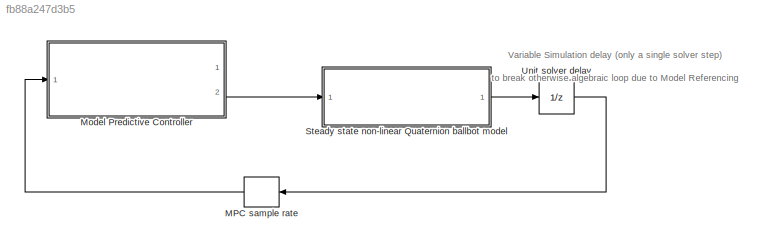
MODEL slx_fb88a247d3b5
KIND model
CONFIG AbsTol = auto
CONFIG EnableMultiTasking = off
CONFIG FixedStep = auto
CONFIG InitFcn = Parameters_General\nParameters_Simulation\nParameters_Controllers
CONFIG MaxStep = 1e-2
CONFIG MinStep = auto
CONFIG PreLoadFcn = modelDir = fileparts(get_param(bdroot, 'FileName'));\naddpath(fullfile(modelDir,'../Parameters'));\naddpath(fullfile(modelDir,'subsystems'));\n\nParameters_General\nParameters_Simulation\nParameters_Controllers
CONFIG RelTol = 1e-5
CONFIG SampleTimeConstraint = Unconstrained
CONFIG Solver = VariableStepAuto
CONFIG SolverName = VariableStepAuto
CONFIG StartTime = 0.0
CONFIG StopTime = 50
BLOCK [ZeroOrderHold] MPC sample rate
  SampleTime = Ts_MPC
BLOCK [ModelReference] Model Predictive Controller
  ModelNameDialog = MPC
  ModelReferenceVersion = 1.113
  Ports = [1, 2]
BLOCK [ModelReference] Steady state non-linear Quaternion ballbot model
  ModelNameDialog = SteadyStateAccelerationModel
  ModelReferenceVersion = 1.2105
  Ports = [1, 1]
BLOCK [UnitDelay] Unit solver delay
  InitialCondition = x_init
  InputProcessing = Elements as channels (sample based)
  SampleTime = -1
ANNOTATION (root): Variable Simulation delay (only a single solver step) to break otherwise algebraic loop due to Model Referencing
LINE MPC sample rate:1 -> Model Predictive Controller:1
LINE Model Predictive Controller:2 -> Steady state non-linear Quaternion ballbot model:1
LINE Steady state non-linear Quaternion ballbot model:1 -> Unit solver delay:1
LINE Unit solver delay:1 -> MPC sample rate:1
